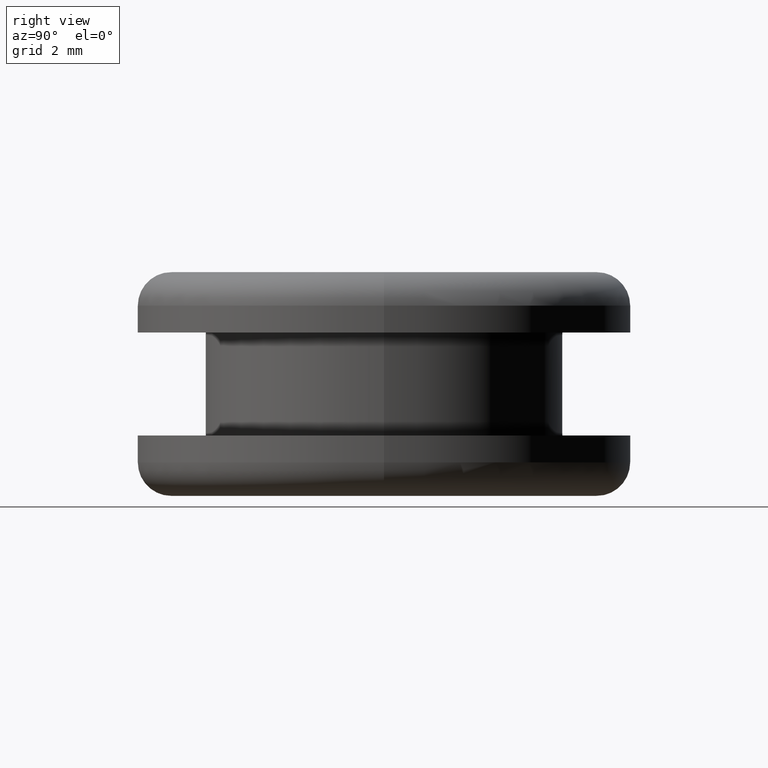
[diagram: clean part render]
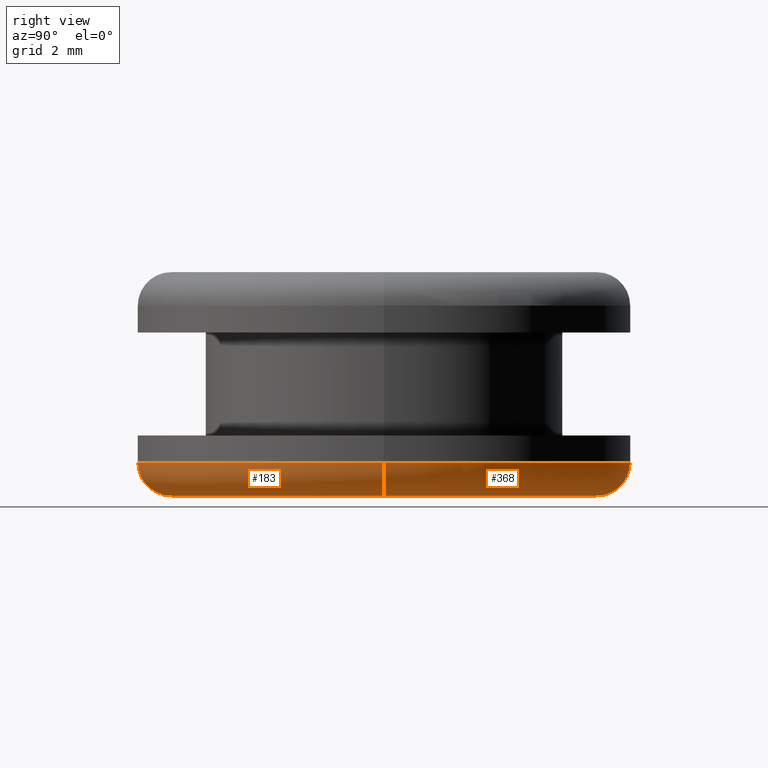
[diagram: same view with one multi-face feature highlighted, each face labeled with its STEP entity id]
A machine part, right view. The highlighted faces form ONE feature: a constant-radius fillet chain: 2 tangent blend faces with common blend radius 0.75 mm. The faces share edges in the B-rep.
Their STEP definitions:
[1] entity #368 (Torus):
#8 = VERTEX_POINT ( 'NONE', #103 ) ;
#18 = CARTESIAN_POINT ( 'NONE',  ( 104.1781270166739100, 0.0000000000000000000, 133.5834774696090200 ) ) ;
#27 = DIRECTION ( 'NONE',  ( 0.0000000000000000000, 0.0000000000000000000, -1.000000000000000000 ) ) ;
#39 = CARTESIAN_POINT ( 'NONE',  ( 113.6781270167288900, 5.817072295983604900E-016, 134.3334774696090200 ) ) ;
#53 = DIRECTION ( 'NONE',  ( -1.000000000000000000, -1.224646799147352000E-016, 0.0000000000000000000 ) ) ;
#68 = DIRECTION ( 'NONE',  ( 0.0000000000000000000, 0.0000000000000000000, -1.000000000000000000 ) ) ;
#73 = VERTEX_POINT ( 'NONE', #203 ) ;
#76 = EDGE_CURVE ( 'NONE', #198, #8, #292, .T. ) ;
#85 = AXIS2_PLACEMENT_3D ( 'NONE', #97, #68, #392 ) ;
#89 = CARTESIAN_POINT ( 'NONE',  ( 104.1781270166739100, 0.0000000000000000000, 134.3334774696090200 ) ) ;
#94 = DIRECTION ( 'NONE',  ( -0.0000000000000000000, -1.000000000000000000, -0.0000000000000000000 ) ) ;
#97 = CARTESIAN_POINT ( 'NONE',  ( 108.9281270167014100, 0.0000000000000000000, 134.3334774696090200 ) ) ;
#100 = CIRCLE ( 'NONE', #396, 0.7500000000000006700 ) ;
#103 = CARTESIAN_POINT ( 'NONE',  ( 114.4281270167288900, 6.735557395344127400E-016, 134.3334774696090200 ) ) ;
#133 = DIRECTION ( 'NONE',  ( -1.000000000000000000, 0.0000000000000000000, 0.0000000000000000000 ) ) ;
#136 = CARTESIAN_POINT ( 'NONE',  ( 103.4281270166739100, 0.0000000000000000000, 134.3334774696090200 ) ) ;
#150 = AXIS2_PLACEMENT_3D ( 'NONE', #39, #220, #53 ) ;
#158 = TOROIDAL_SURFACE ( 'NONE', #85, 4.750000000027499800, 0.7500000000000000000 ) ;
#196 = EDGE_CURVE ( 'NONE', #8, #73, #314, .T. ) ;
#198 = VERTEX_POINT ( 'NONE', #136 ) ;
#203 = CARTESIAN_POINT ( 'NONE',  ( 113.6781270167288900, 6.276314845663863700E-016, 133.5834774696090200 ) ) ;
#220 = DIRECTION ( 'NONE',  ( -1.224646799147353200E-016, 1.000000000000000000, 0.0000000000000000000 ) ) ;
#239 = DIRECTION ( 'NONE',  ( 0.0000000000000000000, 0.0000000000000000000, -1.000000000000000000 ) ) ;
#264 = DIRECTION ( 'NONE',  ( 0.0000000000000000000, 0.0000000000000000000, -1.000000000000000000 ) ) ;
#266 = CARTESIAN_POINT ( 'NONE',  ( 108.9281270167014100, 0.0000000000000000000, 134.3334774696090200 ) ) ;
#281 = CIRCLE ( 'NONE', #297, 4.750000000027496200 ) ;
#287 = ORIENTED_EDGE ( 'NONE', *, *, #298, .F. ) ;
#292 = CIRCLE ( 'NONE', #399, 5.500000000027497100 ) ;
#297 = AXIS2_PLACEMENT_3D ( 'NONE', #366, #27, #133 ) ;
#298 = EDGE_CURVE ( 'NONE', #323, #73, #281, .T. ) ;
#299 = ORIENTED_EDGE ( 'NONE', *, *, #76, .T. ) ;
#314 = CIRCLE ( 'NONE', #150, 0.7500000000000006700 ) ;
#323 = VERTEX_POINT ( 'NONE', #18 ) ;
#325 = EDGE_CURVE ( 'NONE', #198, #323, #100, .T. ) ;
#366 = CARTESIAN_POINT ( 'NONE',  ( 108.9281270167014100, 0.0000000000000000000, 133.5834774696090200 ) ) ;
#368 = ADVANCED_FACE ( 'NONE', ( #449 ), #158, .T. ) ;
#392 = DIRECTION ( 'NONE',  ( -1.000000000000000000, 0.0000000000000000000, 0.0000000000000000000 ) ) ;
#394 = ORIENTED_EDGE ( 'NONE', *, *, #325, .F. ) ;
#396 = AXIS2_PLACEMENT_3D ( 'NONE', #89, #94, #239 ) ;
#397 = DIRECTION ( 'NONE',  ( -1.000000000000000000, 0.0000000000000000000, 0.0000000000000000000 ) ) ;
#399 = AXIS2_PLACEMENT_3D ( 'NONE', #266, #264, #397 ) ;
#400 = ORIENTED_EDGE ( 'NONE', *, *, #196, .T. ) ;
#449 = FACE_OUTER_BOUND ( 'NONE', #472, .T. ) ;
#472 = EDGE_LOOP ( 'NONE', ( #299, #400, #287, #394 ) ) ;
[2] entity #183 (Torus):
#8 = VERTEX_POINT ( 'NONE', #103 ) ;
#17 = AXIS2_PLACEMENT_3D ( 'NONE', #362, #55, #107 ) ;
#18 = CARTESIAN_POINT ( 'NONE',  ( 104.1781270166739100, 0.0000000000000000000, 133.5834774696090200 ) ) ;
#30 = TOROIDAL_SURFACE ( 'NONE', #171, 4.750000000027499800, 0.7500000000000000000 ) ;
#39 = CARTESIAN_POINT ( 'NONE',  ( 113.6781270167288900, 5.817072295983604900E-016, 134.3334774696090200 ) ) ;
#44 = ORIENTED_EDGE ( 'NONE', *, *, #325, .T. ) ;
#53 = DIRECTION ( 'NONE',  ( -1.000000000000000000, -1.224646799147352000E-016, 0.0000000000000000000 ) ) ;
#55 = DIRECTION ( 'NONE',  ( 0.0000000000000000000, 0.0000000000000000000, -1.000000000000000000 ) ) ;
#65 = CARTESIAN_POINT ( 'NONE',  ( 108.9281270167014100, 0.0000000000000000000, 134.3334774696090200 ) ) ;
#73 = VERTEX_POINT ( 'NONE', #203 ) ;
#77 = ORIENTED_EDGE ( 'NONE', *, *, #453, .T. ) ;
#87 = ORIENTED_EDGE ( 'NONE', *, *, #346, .F. ) ;
#89 = CARTESIAN_POINT ( 'NONE',  ( 104.1781270166739100, 0.0000000000000000000, 134.3334774696090200 ) ) ;
#94 = DIRECTION ( 'NONE',  ( -0.0000000000000000000, -1.000000000000000000, -0.0000000000000000000 ) ) ;
#100 = CIRCLE ( 'NONE', #396, 0.7500000000000006700 ) ;
#103 = CARTESIAN_POINT ( 'NONE',  ( 114.4281270167288900, 6.735557395344127400E-016, 134.3334774696090200 ) ) ;
#107 = DIRECTION ( 'NONE',  ( -1.000000000000000000, 0.0000000000000000000, 0.0000000000000000000 ) ) ;
#109 = CIRCLE ( 'NONE', #274, 5.500000000027497100 ) ;
#119 = FACE_OUTER_BOUND ( 'NONE', #126, .T. ) ;
#126 = EDGE_LOOP ( 'NONE', ( #347, #77, #44, #87 ) ) ;
#127 = CARTESIAN_POINT ( 'NONE',  ( 108.9281270167014100, 0.0000000000000000000, 134.3334774696090200 ) ) ;
#136 = CARTESIAN_POINT ( 'NONE',  ( 103.4281270166739100, 0.0000000000000000000, 134.3334774696090200 ) ) ;
#140 = DIRECTION ( 'NONE',  ( -1.000000000000000000, 0.0000000000000000000, 0.0000000000000000000 ) ) ;
#150 = AXIS2_PLACEMENT_3D ( 'NONE', #39, #220, #53 ) ;
#171 = AXIS2_PLACEMENT_3D ( 'NONE', #65, #473, #140 ) ;
#183 = ADVANCED_FACE ( 'NONE', ( #119 ), #30, .T. ) ;
#196 = EDGE_CURVE ( 'NONE', #8, #73, #314, .T. ) ;
#198 = VERTEX_POINT ( 'NONE', #136 ) ;
#203 = CARTESIAN_POINT ( 'NONE',  ( 113.6781270167288900, 6.276314845663863700E-016, 133.5834774696090200 ) ) ;
#220 = DIRECTION ( 'NONE',  ( -1.224646799147353200E-016, 1.000000000000000000, 0.0000000000000000000 ) ) ;
#239 = DIRECTION ( 'NONE',  ( 0.0000000000000000000, 0.0000000000000000000, -1.000000000000000000 ) ) ;
#259 = CIRCLE ( 'NONE', #17, 4.750000000027496200 ) ;
#274 = AXIS2_PLACEMENT_3D ( 'NONE', #127, #418, #383 ) ;
#314 = CIRCLE ( 'NONE', #150, 0.7500000000000006700 ) ;
#323 = VERTEX_POINT ( 'NONE', #18 ) ;
#325 = EDGE_CURVE ( 'NONE', #198, #323, #100, .T. ) ;
#346 = EDGE_CURVE ( 'NONE', #73, #323, #259, .T. ) ;
#347 = ORIENTED_EDGE ( 'NONE', *, *, #196, .F. ) ;
#362 = CARTESIAN_POINT ( 'NONE',  ( 108.9281270167014100, 0.0000000000000000000, 133.5834774696090200 ) ) ;
#383 = DIRECTION ( 'NONE',  ( -1.000000000000000000, 0.0000000000000000000, 0.0000000000000000000 ) ) ;
#396 = AXIS2_PLACEMENT_3D ( 'NONE', #89, #94, #239 ) ;
#418 = DIRECTION ( 'NONE',  ( 0.0000000000000000000, 0.0000000000000000000, -1.000000000000000000 ) ) ;
#453 = EDGE_CURVE ( 'NONE', #8, #198, #109, .T. ) ;
#473 = DIRECTION ( 'NONE',  ( 0.0000000000000000000, 0.0000000000000000000, -1.000000000000000000 ) ) ;